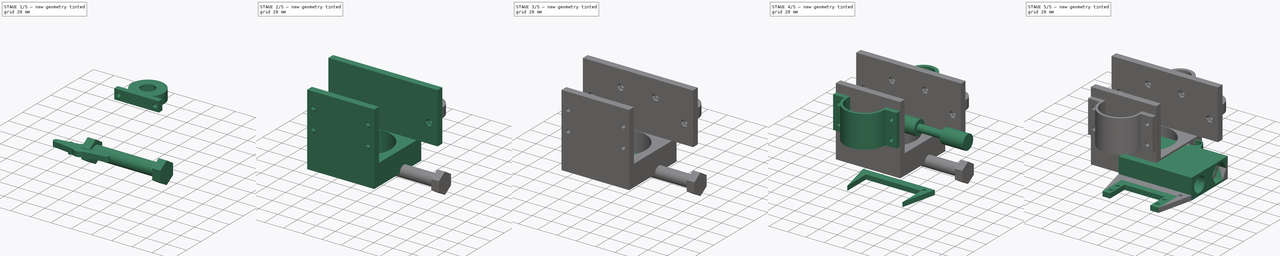
[diagram: build sequence overview — one tinted view per stage of 5, left to right]
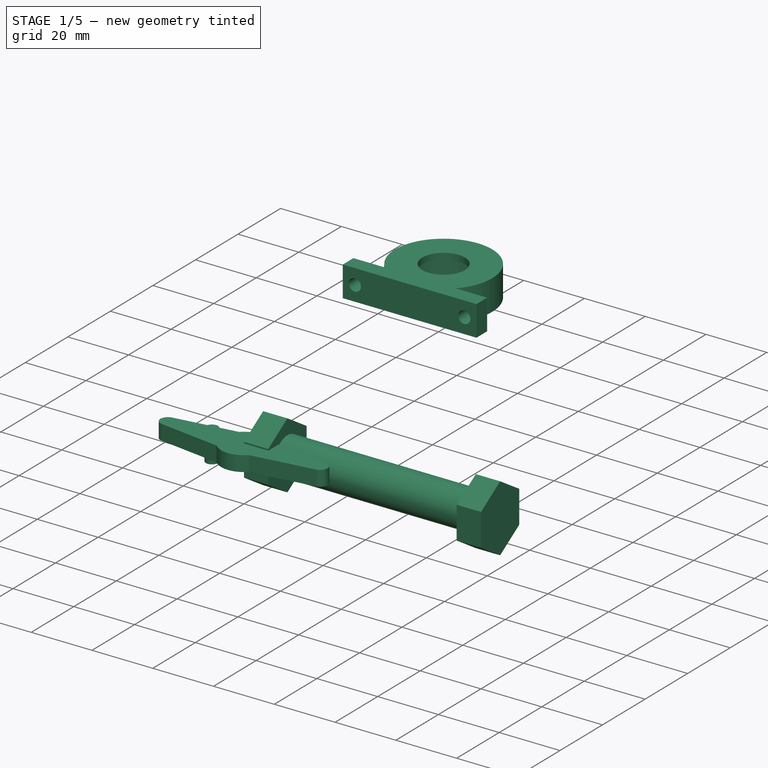
[diagram: stage 1 of 5 — iso view after this stage's code; geometry added in this stage tinted green]
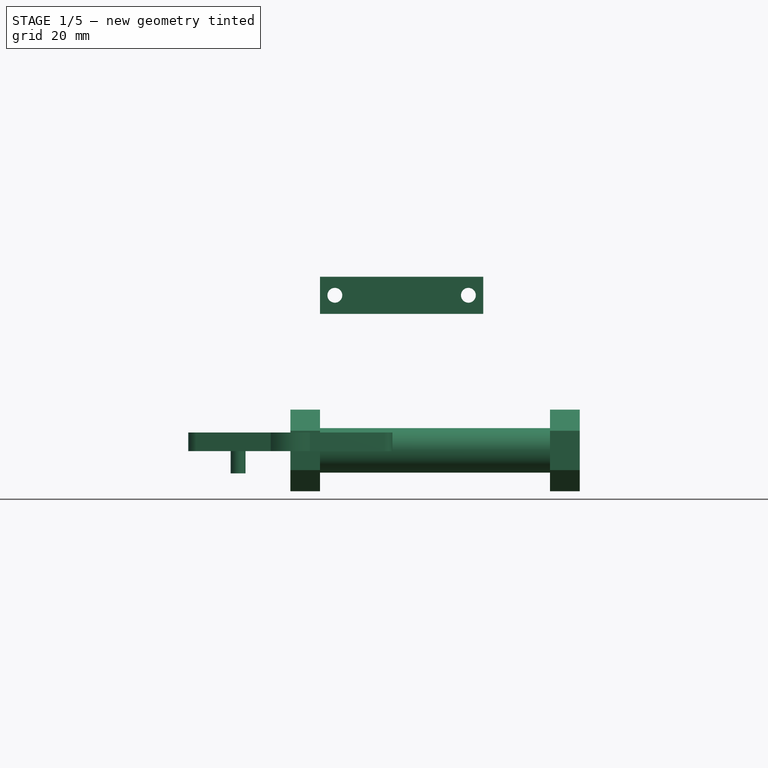
[diagram: stage 1 of 5 — front view after this stage's code; geometry added in this stage tinted green]
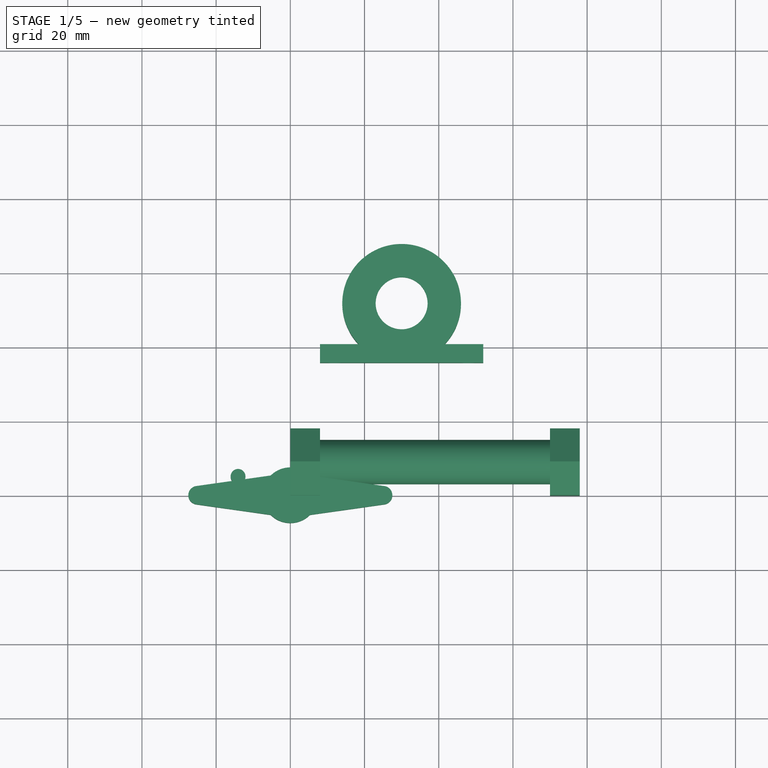
[diagram: stage 1 of 5 — top view after this stage's code; geometry added in this stage tinted green]
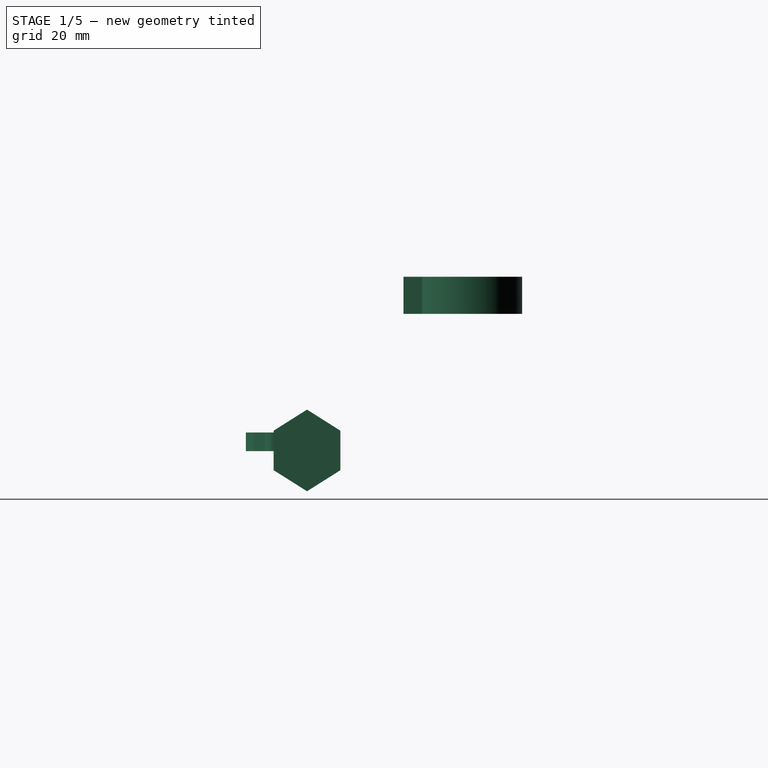
[diagram: stage 1 of 5 — right view after this stage's code; geometry added in this stage tinted green]
FCSTD DOCUMENT  (FreeCAD 0.14R3702 (Git))
Label: wok2
License: CC-BY 3.0
LicenseURL: http://creativecommons.org/licenses/by/3.0/
objects: Part::Cylinder×46, Part::Cut×29, Part::MultiFuse×25, Part::Box×16, Part::FeaturePython×11, Part::Extrusion×10, Part::Feature×6, Sketcher::SketchObject×5, Part::Part2DObjectPython×5, App::DocumentObjectGroup×3, PartDesign::Pocket×2
note: 157 computed .brp shape members not serialized (recipe doc carries the construction recipe); baked Part::Feature solids carry a one-line shape summary decoded from their .brp

FEATURE [Part::Cylinder] Cylinder041
  Angle = 360
  Height = 10
  Placement = pos=(-14.1,5.1,-6) rot=(0,0,1;0rad)
  Radius = 2
FEATURE [Part::Cylinder] Cylinder042
  Angle = 360
  Height = 2
  Radius = 7
FEATURE [Part::Cylinder] Cylinder043
  Angle = 360
  Height = 10
  Radius = 16
FEATURE [Part::Cylinder] Cylinder044
  Angle = 360
  Height = 10
  Placement = pos=(18,8,5) rot=(1,0,0;1.5708rad)
  Radius = 2
FEATURE [Part::Box] Box018  label="Cube017"
  Height = 10
  Length = 44
  Placement = pos=(-22,0,0) rot=(0,0,1;0rad)
  Width = 5
FEATURE [Part::Cylinder] Cylinder045
  Angle = 360
  Height = 2
  Radius = 14
FEATURE [Part::Cylinder] Cylinder046
  Angle = 360
  Height = 35
  Radius = 12.5
FEATURE [Part::Cut] Cut004035  label="cuerpo-arandela002"
  Base = -> Cylinder043
  Tool = -> Cylinder046
FEATURE [Part::FeaturePython] Array010  # Draft array (typed FeaturePython)
  Angle = 360
  ArrayType = 0
  Axis = (0,0,1)
  Base = -> Cylinder044
  Center = (0,0,0)
  IntervalX = (-36,0,0)
  IntervalY = (0,1,0)
  IntervalZ = (0,0,1)
  NumberPolar = 1
  NumberX = 2
  NumberY = 1
  NumberZ = 1
FEATURE [Part::Cut] Cut004034  label="base-arandela001 (se utiliza para el porta-rodamiento-grande001"
  Base = -> Box018
  Placement = pos=(0,11,0) rot=(0,0,1;0rad)
  Tool = -> Array010
FEATURE [Part::Cut] Cut004036  label="tapa-arandela002"
  Base = -> Cylinder045
  Tool = -> Cylinder042
FEATURE [Sketcher::SketchObject] Sketch002
  ExternalGeometry = -> [Cut004034]
  Placement = pos=(0,11,10) rot=(0,0,1;0rad)
  Support = -> Cut004034 [Face3]
  sketch-geometry (2):
    g0: ArcOfCircle CenterX=0 CenterY=-11 CenterZ=0 NormalX=0 NormalY=0 NormalZ=1 Radius=12.5 StartAngle=1.07586 EndAngle=2.06573
    g1: LineSegment StartX=-5.93717 StartY=0 StartZ=0 EndX=5.93717 EndY=0 EndZ=0
  constraints (7):
    c: PointOnObject(g0,g-2)
    c: PointOnObject(g0,g-3)
    c: PointOnObject(g0,g-3)
    c: Radius(g0) = 12.5
    c: DistanceY(g0,g-3) = 11
    c: Coincident(g1,g0)
    c: Coincident(g0,g1)
FEATURE [PartDesign::Pocket] Pocket001
  Length = 8
  Placement = pos=(0,11,0) rot=(0,0,1;0rad)
  Sketch = -> Sketch002
  Type = 0
FEATURE [Part::MultiFuse] Fusion035  label="porta-rodamiento-grande001"
  Placement = pos=(30,51,47) rot=(1,0,0;3.14159rad)
  Shapes = -> [Pocket001,Cut004035,Cut004036]
FEATURE [App::DocumentObjectGroup] Group001  label="Codos"
  Group = -> [Cut004020,Fusion025,Cut004026,Fusion026,Cut004029,Cut004033,Cut004034,Fusion035]
FEATURE [Sketcher::SketchObject] Sketch003
  sketch-geometry (6):
    g0: LineSegment StartX=0 StartY=0 StartZ=0 EndX=10.6444 EndY=0 EndZ=0
    g1: LineSegment StartX=10.6444 StartY=0 StartZ=0 EndX=16.328 EndY=9 EndZ=0
    g2: LineSegment StartX=0 StartY=0 StartZ=0 EndX=-5.68357 EndY=9 EndZ=0
    g3: LineSegment StartX=-5.68357 StartY=9 StartZ=0 EndX=0 EndY=18 EndZ=0
    g4: LineSegment StartX=16.328 StartY=9 StartZ=0 EndX=10.6444 EndY=18 EndZ=0
    g5: LineSegment StartX=0 StartY=18 StartZ=0 EndX=10.6444 EndY=18 EndZ=0
  constraints (18):
    c: Coincident(g0,g-1)
    c: PointOnObject(g0,g-1)
    c: Coincident(g2,g-1)
    c: Coincident(g3,g2)
    c: Horizontal(g5)
    c: Parallel(g3,g1)
    c: Parallel(g4,g2)
    c: Coincident(g3,g5)
    c: Coincident(g4,g5)
    c: Coincident(g1,g4)
    c: Equal(g0,g2)
    c: Equal(g2,g3)
    c: Equal(g3,g5)
    c: Equal(g5,g1)
    c: Equal(g1,g4)
    c: DistanceY(g-1,g3) = 18
    c: DistanceX(g-1,g3) = 0
    c: DistanceX(g2,g1) = 22.0115
FEATURE [Part::Part2DObjectPython] DWire002  # Draft 2D object (typed FeaturePython)
  Base = -> Sketch003
  ChamferSize = 0
  Closed = true
  End = (-5.68357,9,0)
  FilletRadius = 0
  MakeFace = true
  Points = (6) [(0,0,0),(10.6444,2.83233e-17,0),(16.328,9,0),(10.6444,18,0),(0,18,0),(-5.68357,9,0)]
  Start = (0,0,0)
FEATURE [Part::Extrusion] Extrude016  label="hueco-tuerca-M012"
  Base = -> DWire002
  Dir = (0,0,8)
  Placement = pos=(0,0,5.5) rot=(0,1,0;1.5708rad)
  Solid = false
FEATURE [Part::Part2DObjectPython] DWire003  # Draft 2D object (typed FeaturePython)
  Base = -> Sketch003
  ChamferSize = 0
  Closed = true
  End = (-5.68357,9,0)
  FilletRadius = 0
  MakeFace = true
  Points = (6) [(0,0,0),(10.6444,2.83233e-17,0),(16.328,9,0),(10.6444,18,0),(0,18,0),(-5.68357,9,0)]
  Start = (0,0,0)
FEATURE [Part::Extrusion] Extrude017  label="hueco-tuerca-M013"
  Base = -> DWire003
  Dir = (0,0,8)
  Placement = pos=(70,0,5.5) rot=(0,1,0;1.5708rad)
  Solid = false
FEATURE [Part::Cylinder] Cylinder047
  Angle = 360
  Height = 78
  Placement = pos=(0,9,0.2) rot=(0,1,0;1.5708rad)
  Radius = 6
FEATURE [Part::MultiFuse] Fusion036  label="hueco- tuercas001"
  Shapes = -> [Cylinder047,Extrude017,Extrude016]
FEATURE [App::DocumentObjectGroup] Group  label="Carro"
  Group = -> [Fusion014,Fusion010]
FEATURE [Part::Cylinder] Cylinder048
  Angle = 360
  Height = 10
  Radius = 5
FEATURE [Part::Cylinder] Cylinder049
  Angle = 360
  Height = 5
  Radius = 7.5
FEATURE [Part::Cut] Cut004037  label="autoblocanteM10"
  Base = -> Cylinder049
  Tool = -> Cylinder048
FEATURE [Sketcher::SketchObject] Sketch004
  sketch-geometry (6):
    g0: LineSegment StartX=-4.1 StartY=0 StartZ=0 EndX=-2.12025 EndY=3.75 EndZ=0
    g1: LineSegment StartX=-2.12025 StartY=3.75 StartZ=0 EndX=2.12025 EndY=3.75 EndZ=0
    g2: LineSegment StartX=2.12025 StartY=3.75 StartZ=0 EndX=4.1 EndY=0 EndZ=0
    g3: LineSegment StartX=4.1 StartY=0 StartZ=0 EndX=2.12025 EndY=-3.75 EndZ=0
    g4: LineSegment StartX=2.12025 StartY=-3.75 StartZ=0 EndX=-2.12025 EndY=-3.75 EndZ=0
    g5: LineSegment StartX=-2.12025 StartY=-3.75 StartZ=0 EndX=-4.1 EndY=0 EndZ=0
  constraints (20):
    c: Coincident(g0,g1)
    c: Horizontal(g1)
    c: Coincident(g1,g2)
    c: Coincident(g2,g3)
    c: Coincident(g3,g4)
    c: Horizontal(g4)
    c: Coincident(g4,g5)
    c: Coincident(g5,g0)
    c: Parallel(g0,g3)
    c: Parallel(g2,g5)
    c: Equal(g1,g2)
    c: Equal(g2,g3)
    c: Equal(g3,g4)
    c: Equal(g4,g5)
    c: Equal(g5,g0)
    c: DistanceY(g4,g0) = 7.5
    c: DistanceY(g2,g0) = 0
    c: DistanceX(g0,g2) = 8.2
    c: DistanceX(g-1,g0) = -4.1
    c: DistanceY(g-1,g0) = 0
FEATURE [Part::Cylinder] Cylinder050
  Angle = 360
  Height = 5
  Radius = 6
FEATURE [Part::Part2DObjectPython] DWire004  # Draft 2D object (typed FeaturePython)
  Base = -> Sketch004
  ChamferSize = 0
  Closed = true
  End = (-9.63908,-6.82524,0)
  FilletRadius = 0
  MakeFace = true
  Points = (6) [(-11.6188,-3.07524,0),(-9.63908,0.674764,0),(-5.39857,0.674764,0),(-3.41883,-3.07524,0),(-5.39857,-6.82524,0),(-9.63908,-6.82524,0)]
  Start = (-11.6188,-3.07524,0)
FEATURE [Part::Extrusion] Extrude018
  Base = -> DWire004
  Dir = (0,0,5)
  Solid = false
FEATURE [Part::Cylinder] Cylinder052
  Angle = 360
  Height = 5
  Placement = pos=(-25,0,0) rot=(0,0,1;0rad)
  Radius = 2.5
FEATURE [Part::Cylinder] Cylinder053
  Angle = 360
  Height = 5
  Placement = pos=(25,0,0) rot=(0,0,1;0rad)
  Radius = 2.5
FEATURE [Part::Cylinder] Cylinder054
  Angle = 360
  Height = 10
  Placement = pos=(24,0,0) rot=(0,0,1;0rad)
  Radius = 1.5
FEATURE [Part::Cylinder] Cylinder055
  Angle = 360
  Height = 10
  Placement = pos=(-24,0,0) rot=(0,0,1;0rad)
  Radius = 1.5
FEATURE [Part::MultiFuse] Fusion037
  Shapes = -> [Cylinder055,Cylinder054,Extrude018]
FEATURE [Part::Feature] hull
  shape: bbox 55 x 11.99 x 5 mm, 68 faces (baked)
FEATURE [Part::Cut] Cut004038  label="eje-wok"
  Base = -> hull
  Tool = -> Fusion037
FEATURE [App::DocumentObjectGroup] Group002  label="Eje-Wok"
  Group = -> [Cylinder050,Cylinder052,Cylinder053,Cut004038]
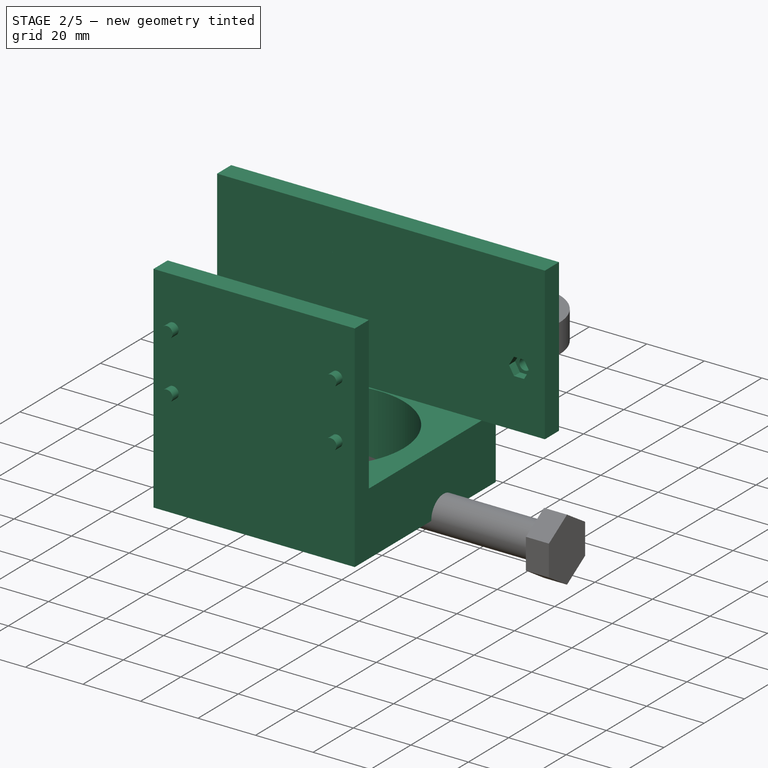
[diagram: stage 2 of 5 — iso view after this stage's code; geometry added in this stage tinted green]
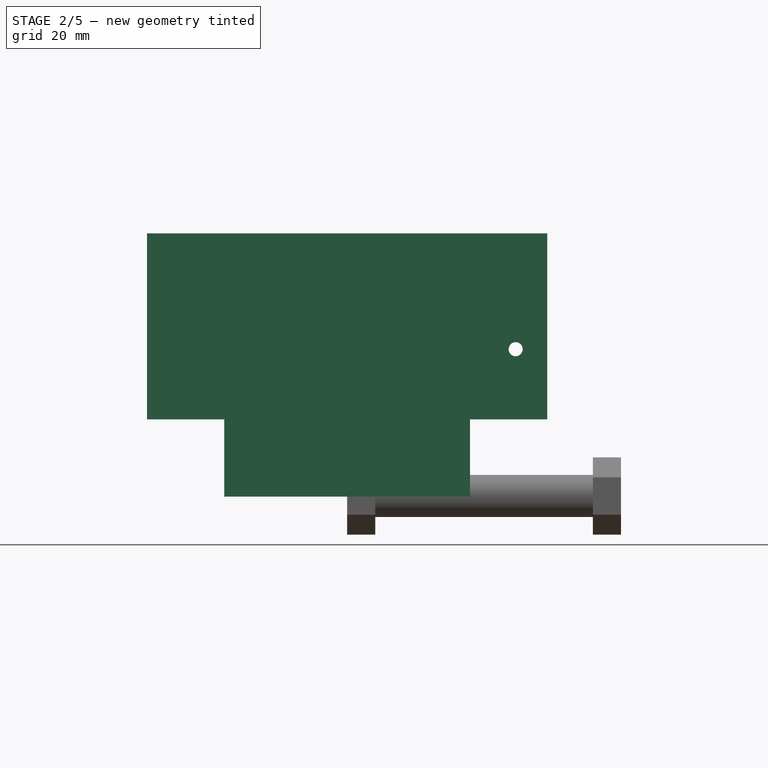
[diagram: stage 2 of 5 — front view after this stage's code; geometry added in this stage tinted green]
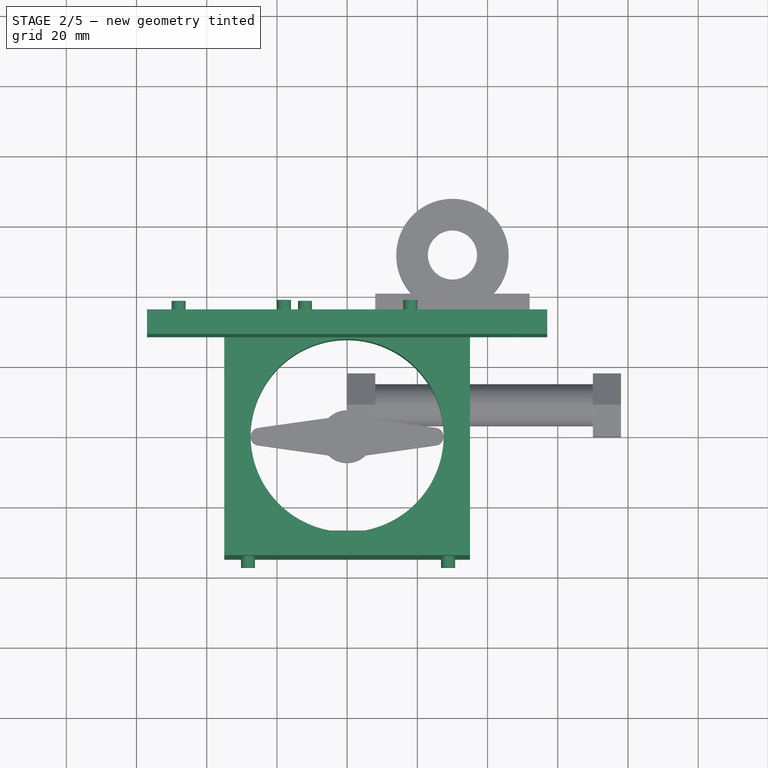
[diagram: stage 2 of 5 — top view after this stage's code; geometry added in this stage tinted green]
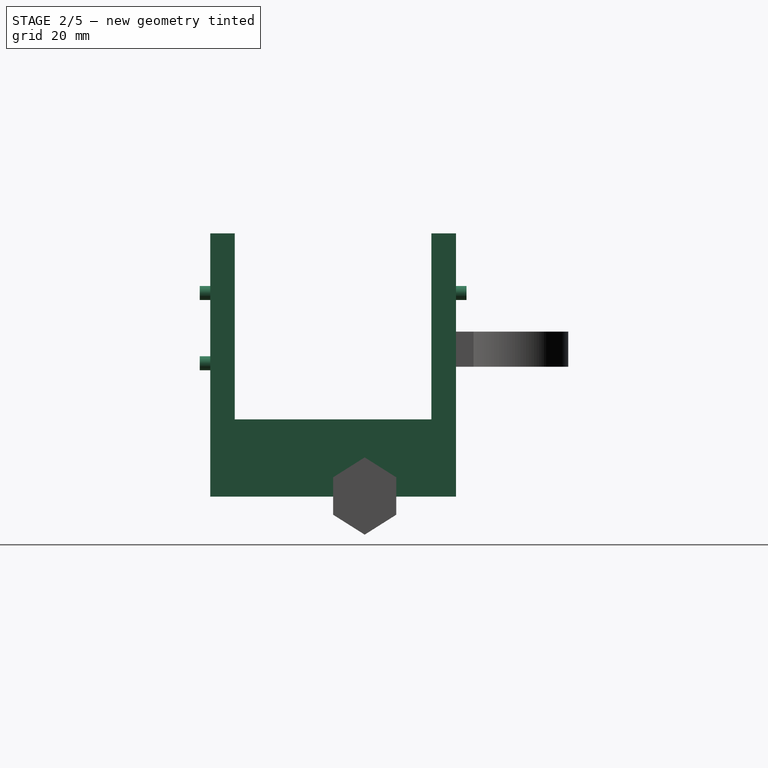
[diagram: stage 2 of 5 — right view after this stage's code; geometry added in this stage tinted green]
FEATURE [Part::Cylinder] Cylinder
  Angle = 360
  Height = 10
  Placement = pos=(-14.1,5.1,-6) rot=(0,0,1;0rad)
  Radius = 2
FEATURE [Part::Box] Box007  label="Cube006"
  Height = 53
  Length = 92
  Placement = pos=(-57,28,22) rot=(0,0,1;0rad)
  Width = 7
FEATURE [Part::Box] Box008  label="Cube007"
  Height = 53
  Length = 70
  Placement = pos=(-35,-35,22) rot=(0,0,1;0rad)
  Width = 7
FEATURE [Part::MultiFuse] Fusion021  label="agujero-tornillo"
  Placement = pos=(-30,-28,36) rot=(1,0,0;1.5708rad)
  Shapes = -> [Cylinder]
FEATURE [Part::FeaturePython] Array001  # Draft array (typed FeaturePython)
  Angle = 360
  ArrayType = 0
  Axis = (0,0,1)
  Base = -> Fusion021
  Center = (0,0,0)
  IntervalX = (57,0,0)
  IntervalY = (0,0,20)
  IntervalZ = (0,0,0)
  NumberPolar = 1
  NumberX = 2
  NumberY = 2
  NumberZ = 0
  Placement = pos=(0,0,-1) rot=(0,0,1;0rad)
FEATURE [Part::Cylinder] Cylinder036
  Angle = 360
  Height = 10
  Placement = pos=(-14.1,5.1,-6) rot=(0,0,1;0rad)
  Radius = 2
FEATURE [Part::MultiFuse] Fusion029  label="agujero-tornillo002"
  Placement = pos=(-30,-28,36) rot=(1,0,0;1.5708rad)
  Shapes = -> [Cylinder036]
FEATURE [Part::FeaturePython] Array005  # Draft array (typed FeaturePython)
  Angle = 360
  ArrayType = 0
  Axis = (0,0,1)
  Base = -> Fusion029
  Center = (0,0,0)
  IntervalX = (36,0,0)
  IntervalY = (0,0,20)
  IntervalZ = (0,0,0)
  NumberPolar = 1
  NumberX = 2
  NumberY = 1
  NumberZ = 0
  Placement = pos=(-10.25,0,19) rot=(0,0,1;3.14159rad)
FEATURE [Part::Cylinder] Cylinder037
  Angle = 360
  Height = 10
  Placement = pos=(-14.1,5.1,-6) rot=(0,0,1;0rad)
  Radius = 2
FEATURE [Part::MultiFuse] Fusion030  label="agujero-tornillo003"
  Placement = pos=(-30,-28,36) rot=(1,0,0;1.5708rad)
  Shapes = -> [Cylinder037]
FEATURE [Part::FeaturePython] Array006  # Draft array (typed FeaturePython)
  Angle = 360
  ArrayType = 0
  Axis = (0,0,1)
  Base = -> Fusion030
  Center = (0,0,0)
  IntervalX = (36,0,0)
  IntervalY = (0,0,20)
  IntervalZ = (0,0,0)
  NumberPolar = 1
  NumberX = 2
  NumberY = 1
  NumberZ = 0
  Placement = pos=(-40.25,0,3) rot=(0,0,1;3.14159rad)
FEATURE [Part::Cylinder] Cylinder038
  Angle = 360
  Height = 10
  Placement = pos=(-14.1,5.1,-6) rot=(0,0,1;0rad)
  Radius = 2
FEATURE [Part::Cylinder] Cylinder039
  Angle = 360
  Height = 10
  Placement = pos=(-14.1,5.1,-6) rot=(0,0,1;0rad)
  Radius = 2
FEATURE [Part::MultiFuse] Fusion031  label="agujero-tornillo004"
  Placement = pos=(-30,-28,36) rot=(1,0,0;1.5708rad)
  Shapes = -> [Cylinder039]
FEATURE [Part::Cylinder] Cylinder040
  Angle = 360
  Height = 22
  Radius = 27.5
FEATURE [Part::Box] Box015  label="Cube014"
  Height = 22
  Length = 70
  Placement = pos=(-35,-35,0) rot=(0,0,1;0rad)
  Width = 70
FEATURE [Part::Box] Box016  label="Cube015"
  Height = 53
  Length = 92
  Placement = pos=(-35,28,22) rot=(0,0,1;0rad)
  Width = 7
FEATURE [Part::Box] Box017  label="Cube016"
  Height = 53
  Length = 70
  Placement = pos=(-35,-35,22) rot=(0,0,1;0rad)
  Width = 7
FEATURE [Part::MultiFuse] Fusion032
  Shapes = -> [Box015,Box016,Box017]
FEATURE [Part::Cut] Cut004030
  Base = -> Fusion032
  Tool = -> Cylinder040
FEATURE [Part::FeaturePython] Array007  # Draft array (typed FeaturePython)
  Angle = 360
  ArrayType = 0
  Axis = (0,0,1)
  Base = -> Fusion031
  Center = (0,0,0)
  IntervalX = (57,0,0)
  IntervalY = (0,0,20)
  IntervalZ = (0,0,0)
  NumberPolar = 1
  NumberX = 2
  NumberY = 2
  NumberZ = 0
  Placement = pos=(0,0,-1) rot=(0,0,1;0rad)
FEATURE [Part::Cut] Cut004031  label="Cut004039"
  Base = -> Cut004030
  Tool = -> Array007
FEATURE [Part::MultiFuse] Fusion033  label="agujero-tornillo005"
  Placement = pos=(-30,-28,36) rot=(1,0,0;1.5708rad)
  Shapes = -> [Cylinder038]
FEATURE [Part::FeaturePython] Array008  # Draft array (typed FeaturePython)
  Angle = 360
  ArrayType = 0
  Axis = (0,0,1)
  Base = -> Fusion033
  Center = (0,0,0)
  IntervalX = (36,0,0)
  IntervalY = (0,0,20)
  IntervalZ = (0,0,0)
  NumberPolar = 1
  NumberX = 2
  NumberY = 1
  NumberZ = 0
  Placement = pos=(19.75,0,3) rot=(0,0,1;3.14159rad)
FEATURE [Part::MultiFuse] Fusion034  label="agujero-tornillo006"
  Placement = pos=(-30,-28,36) rot=(1,0,0;1.5708rad)
  Shapes = -> [Cylinder041]
FEATURE [Part::FeaturePython] Array009  # Draft array (typed FeaturePython)
  Angle = 360
  ArrayType = 0
  Axis = (0,0,1)
  Base = -> Fusion034
  Center = (0,0,0)
  IntervalX = (36,0,0)
  IntervalY = (0,0,20)
  IntervalZ = (0,0,0)
  NumberPolar = 1
  NumberX = 2
  NumberY = 1
  NumberZ = 0
  Placement = pos=(-10.25,0,19) rot=(0,0,1;3.14159rad)
FEATURE [Part::Cut] Cut004032  label="Cut004040"
  Base = -> Cut004031
  Tool = -> Array009
FEATURE [Part::Cut] Cut004033  label="cuerpo codo IZQ"
  Base = -> Cut004032
  Tool = -> Array008
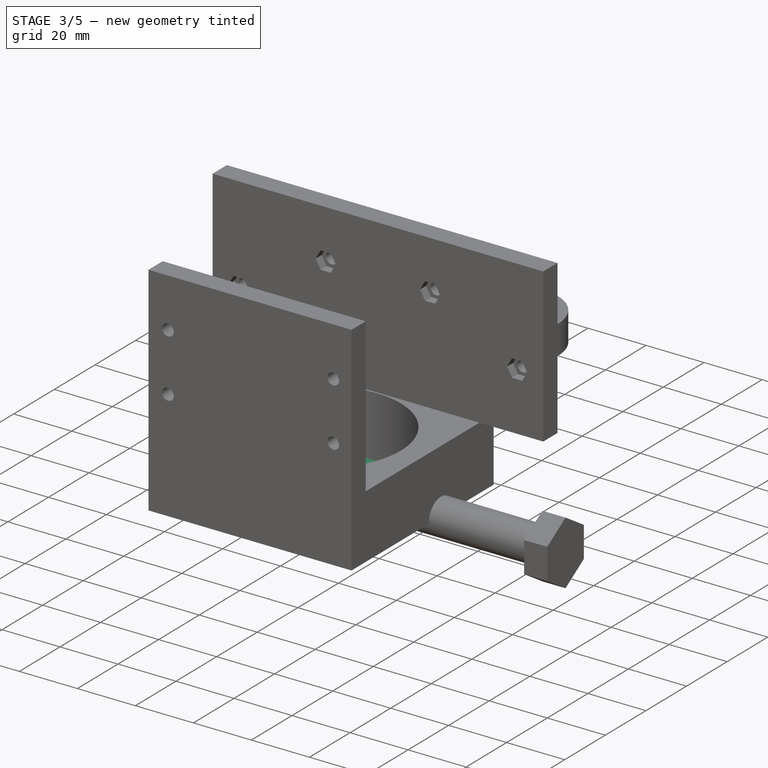
[diagram: stage 3 of 5 — iso view after this stage's code; geometry added in this stage tinted green]
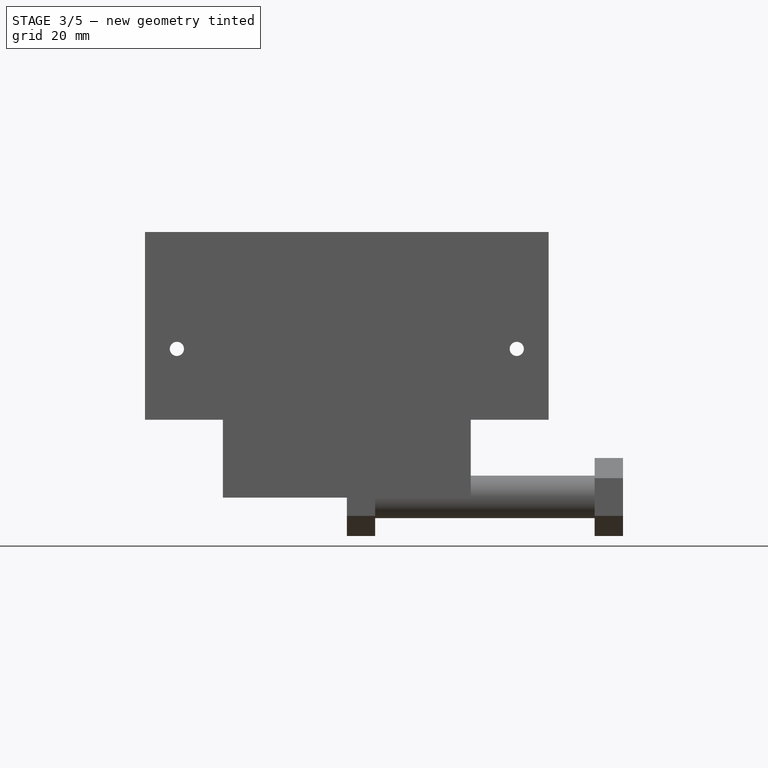
[diagram: stage 3 of 5 — front view after this stage's code; geometry added in this stage tinted green]
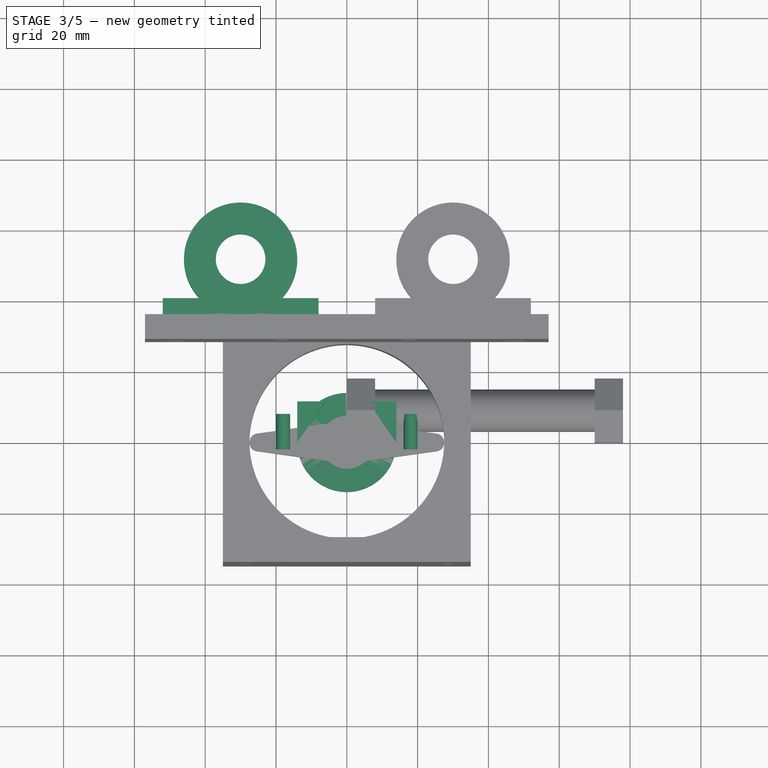
[diagram: stage 3 of 5 — top view after this stage's code; geometry added in this stage tinted green]
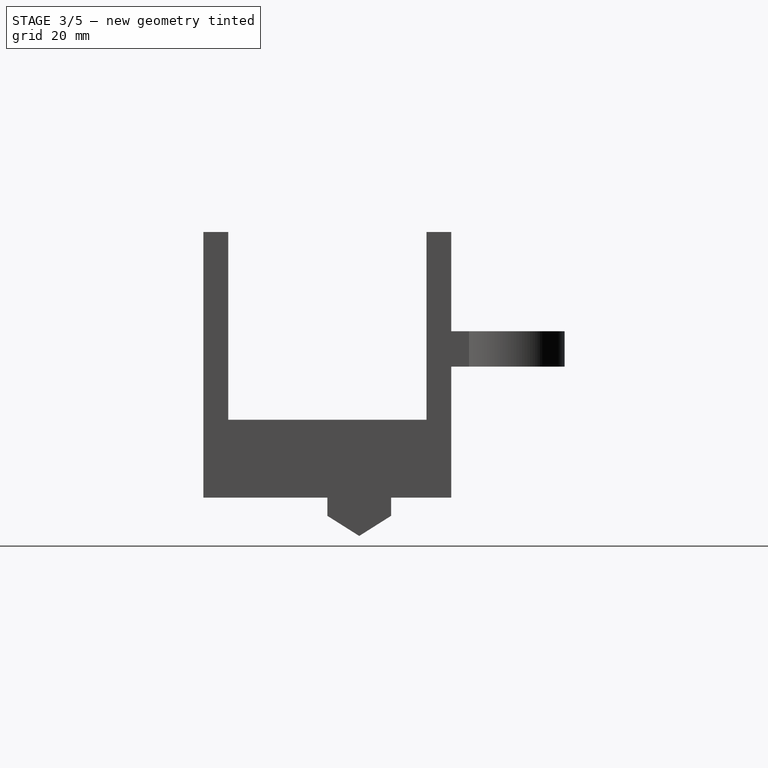
[diagram: stage 3 of 5 — right view after this stage's code; geometry added in this stage tinted green]
FEATURE [Part::Cylinder] Cylinder018
  Angle = 360
  Height = 22
  Radius = 27.5
FEATURE [Part::Box] Box006  label="Cube"
  Height = 22
  Length = 70
  Placement = pos=(-35,-35,0) rot=(0,0,1;0rad)
  Width = 70
FEATURE [Part::MultiFuse] Fusion016
  Shapes = -> [Box006,Box007,Box008]
FEATURE [Part::Cut] Cut004009
  Base = -> Fusion016
  Tool = -> Cylinder018
FEATURE [Part::Cylinder] Cylinder024
  Angle = 360
  Height = 10
  Placement = pos=(18,8,5) rot=(1,0,0;1.5708rad)
  Radius = 2
FEATURE [Part::Cut] Cut004021  label="Cut004037"
  Base = -> Cut004009
  Tool = -> Array001
FEATURE [Part::FeaturePython] Array003  # Draft array (typed FeaturePython)
  Angle = 360
  ArrayType = 0
  Axis = (0,0,1)
  Base = -> Cylinder024
  Center = (0,0,0)
  IntervalX = (-36,0,0)
  IntervalY = (0,1,0)
  IntervalZ = (0,0,1)
  NumberPolar = 1
  NumberX = 2
  NumberY = 1
  NumberZ = 1
FEATURE [Part::Feature] Face006
  shape: bbox 8.007 x 11.41 x 2e-07 mm, 1 faces, 0 solids (baked)
FEATURE [Part::Feature] Face007
  shape: bbox 7.943 x 11.38 x 2e-07 mm, 1 faces, 0 solids (baked)
FEATURE [Part::Extrusion] Extrude012
  Base = -> Face006
  Dir = (0,0,-10)
  Solid = false
FEATURE [Part::Extrusion] Extrude013
  Base = -> Face007
  Dir = (0,0,-10)
  Solid = false
FEATURE [Part::MultiFuse] Fusion024
  Shapes = -> [Extrude013,Extrude012]
FEATURE [Part::Cylinder] Cylinder028
  Angle = 360
  Height = 2
  Radius = 7
FEATURE [Part::Cylinder] Cylinder029
  Angle = 360
  Height = 2
  Radius = 14
FEATURE [Part::Cut] Cut004023  label="tapa-arandela"
  Base = -> Cylinder029
  Tool = -> Cylinder028
FEATURE [Part::Box] Box014  label="Cube013"
  Height = 10
  Length = 44
  Placement = pos=(-22,0,0) rot=(0,0,1;0rad)
  Width = 5
FEATURE [Part::Cylinder] Cylinder030
  Angle = 360
  Height = 10
  Radius = 16
FEATURE [Part::Cylinder] Cylinder031
  Angle = 360
  Height = 10
  Placement = pos=(18,8,5) rot=(1,0,0;1.5708rad)
  Radius = 2
FEATURE [Part::Cylinder] Cylinder032
  Angle = 360
  Height = 35
  Radius = 12.5
FEATURE [Part::Cut] Cut004024  label="cuerpo-arandela001"
  Base = -> Cylinder030
  Tool = -> Cylinder032
FEATURE [Part::FeaturePython] Array004  # Draft array (typed FeaturePython)
  Angle = 360
  ArrayType = 0
  Axis = (0,0,1)
  Base = -> Cylinder031
  Center = (0,0,0)
  IntervalX = (-36,0,0)
  IntervalY = (0,1,0)
  IntervalZ = (0,0,1)
  NumberPolar = 1
  NumberX = 2
  NumberY = 1
  NumberZ = 1
FEATURE [Part::Cut] Cut004026  label="base-arandela001 (se utiliza para el porta-rodamiento-grande"
  Base = -> Box014
  Placement = pos=(0,11,0) rot=(0,0,1;0rad)
  Tool = -> Array004
FEATURE [Part::Cylinder] Cylinder033
  Angle = 360
  Height = 2
  Radius = 7
FEATURE [Part::Cylinder] Cylinder034
  Angle = 360
  Height = 2
  Radius = 14
FEATURE [Part::Cut] Cut004025  label="tapa-arandela001"
  Base = -> Cylinder034
  Tool = -> Cylinder033
FEATURE [Sketcher::SketchObject] Sketch001
  ExternalGeometry = -> [Cut004026]
  Placement = pos=(0,11,10) rot=(0,0,1;0rad)
  Support = -> Cut004026 [Face3]
  sketch-geometry (2):
    g0: ArcOfCircle CenterX=0 CenterY=-11 CenterZ=0 NormalX=0 NormalY=0 NormalZ=1 Radius=12.5 StartAngle=1.07586 EndAngle=2.06573
    g1: LineSegment StartX=-5.93717 StartY=0 StartZ=0 EndX=5.93717 EndY=0 EndZ=0
  constraints (7):
    c: PointOnObject(g0,g-2)
    c: PointOnObject(g0,g-3)
    c: PointOnObject(g0,g-3)
    c: Radius(g0) = 12.5
    c: DistanceY(g0,g-3) = 11
    c: Coincident(g1,g0)
    c: Coincident(g0,g1)
FEATURE [PartDesign::Pocket] Pocket
  Length = 8
  Placement = pos=(0,11,0) rot=(0,0,1;0rad)
  Sketch = -> Sketch001
  Type = 0
FEATURE [Part::MultiFuse] Fusion026  label="porta-rodamiento-grande"
  Placement = pos=(-30,51,47) rot=(1,0,0;3.14159rad)
  Shapes = -> [Pocket,Cut004024,Cut004025]
FEATURE [Part::Cut] Cut004028  label="Cut004038"
  Base = -> Cut004021
  Tool = -> Array005
FEATURE [Part::Cut] Cut004029  label="cuerpo codo DER"
  Base = -> Cut004028
  Tool = -> Array006
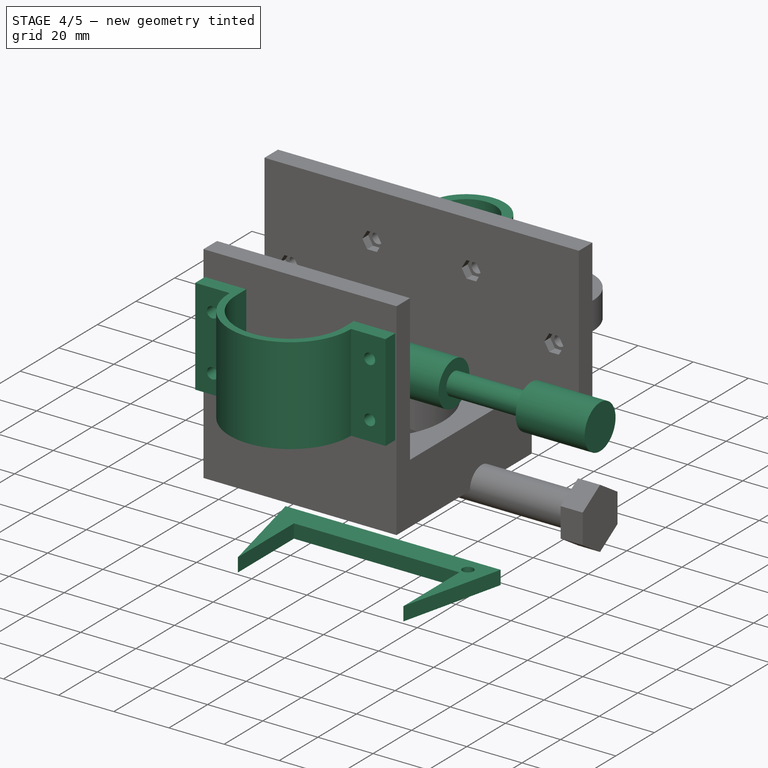
[diagram: stage 4 of 5 — iso view after this stage's code; geometry added in this stage tinted green]
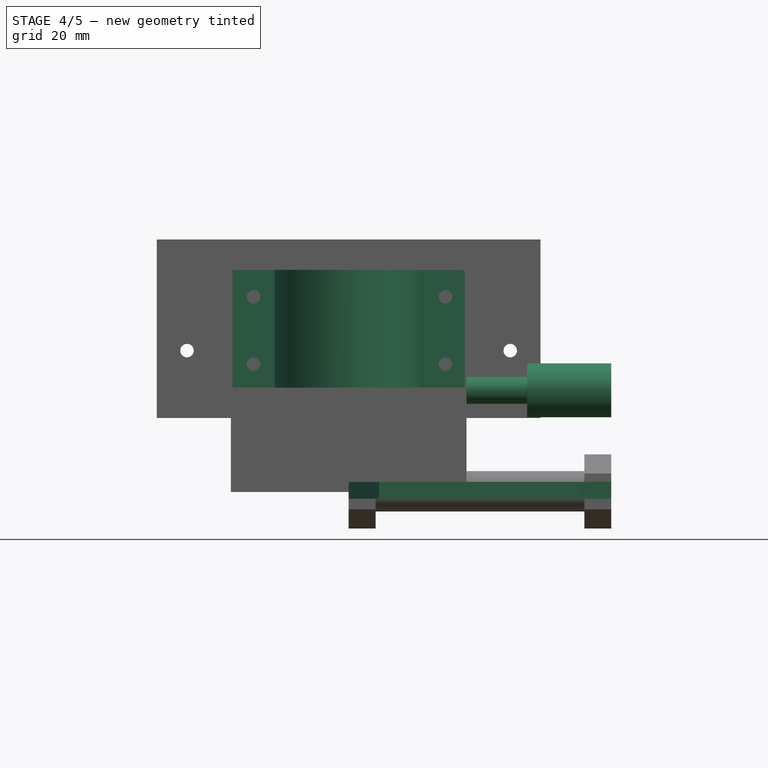
[diagram: stage 4 of 5 — front view after this stage's code; geometry added in this stage tinted green]
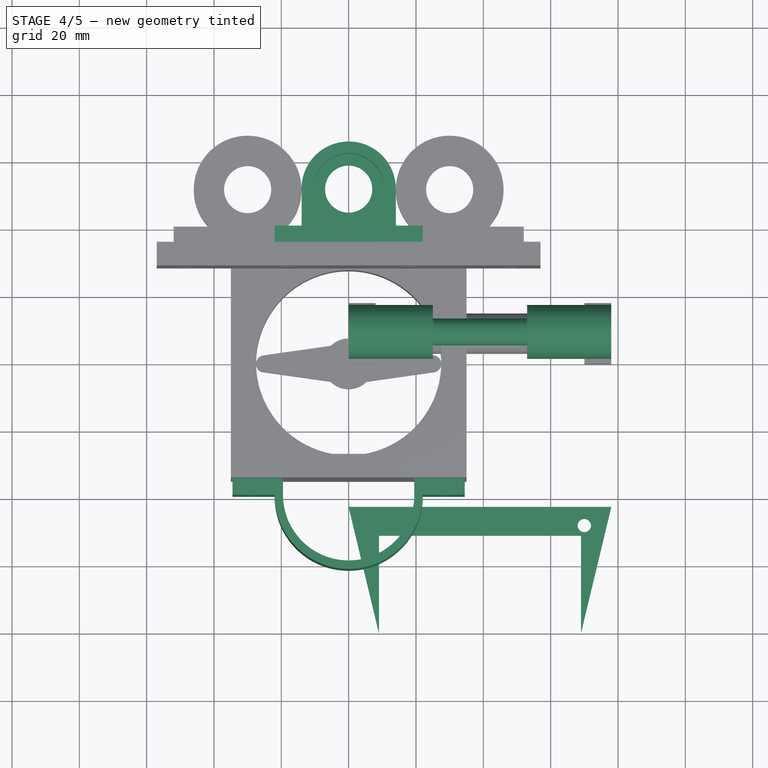
[diagram: stage 4 of 5 — top view after this stage's code; geometry added in this stage tinted green]
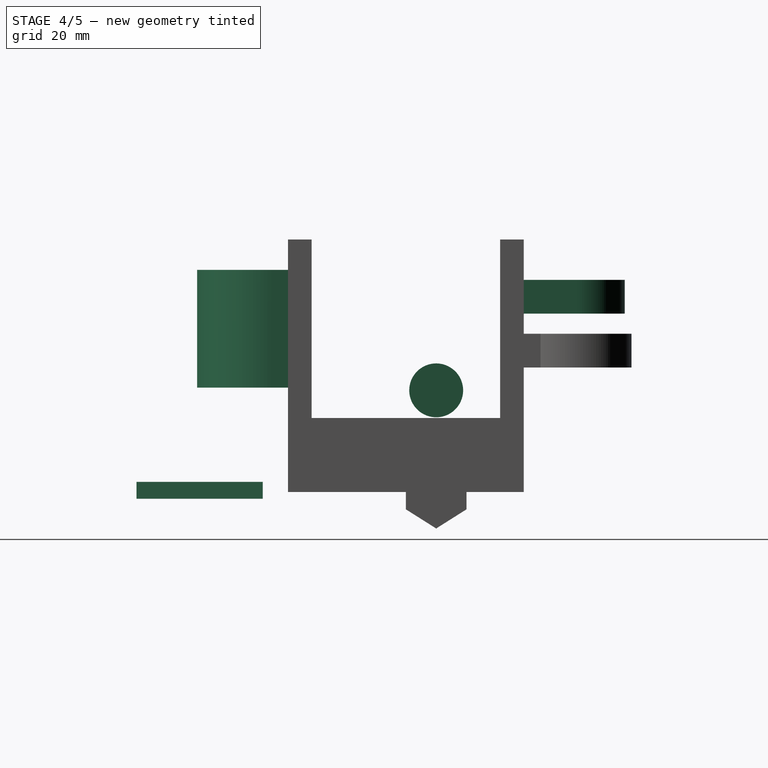
[diagram: stage 4 of 5 — right view after this stage's code; geometry added in this stage tinted green]
FEATURE [Sketcher::SketchObject] Sketch
  sketch-geometry (6):
    g0: LineSegment StartX=0 StartY=0 StartZ=0 EndX=10.6444 EndY=0 EndZ=0
    g1: LineSegment StartX=10.6444 StartY=0 StartZ=0 EndX=16.328 EndY=9 EndZ=0
    g2: LineSegment StartX=0 StartY=0 StartZ=0 EndX=-5.68357 EndY=9 EndZ=0
    g3: LineSegment StartX=-5.68357 StartY=9 StartZ=0 EndX=0 EndY=18 EndZ=0
    g4: LineSegment StartX=16.328 StartY=9 StartZ=0 EndX=10.6444 EndY=18 EndZ=0
    g5: LineSegment StartX=0 StartY=18 StartZ=0 EndX=10.6444 EndY=18 EndZ=0
  constraints (18):
    c: Coincident(g0,g-1)
    c: PointOnObject(g0,g-1)
    c: Coincident(g2,g-1)
    c: Coincident(g3,g2)
    c: Horizontal(g5)
    c: Parallel(g3,g1)
    c: Parallel(g4,g2)
    c: Coincident(g3,g5)
    c: Coincident(g4,g5)
    c: Coincident(g1,g4)
    c: Equal(g0,g2)
    c: Equal(g2,g3)
    c: Equal(g3,g5)
    c: Equal(g5,g1)
    c: Equal(g1,g4)
    c: DistanceY(g-1,g3) = 18
    c: DistanceX(g-1,g3) = 0
    c: DistanceX(g2,g1) = 22.0115
FEATURE [Part::Part2DObjectPython] DWire  # Draft 2D object (typed FeaturePython)
  Base = -> Sketch
  ChamferSize = 0
  Closed = true
  End = (-5.68357,9,0)
  FilletRadius = 0
  MakeFace = true
  Points = (6) [(0,0,0),(10.6444,2.83233e-17,0),(16.328,9,0),(10.6444,18,0),(0,18,0),(-5.68357,9,0)]
  Start = (0,0,0)
FEATURE [Part::Extrusion] Extrude  label="hueco-tuerca-M10"
  Base = -> DWire
  Dir = (0,0,8)
  Placement = pos=(0,0,5.5) rot=(0,1,0;1.5708rad)
  Solid = false
FEATURE [Part::Part2DObjectPython] DWire001  # Draft 2D object (typed FeaturePython)
  Base = -> Sketch
  ChamferSize = 0
  Closed = true
  End = (-5.68357,9,0)
  FilletRadius = 0
  MakeFace = true
  Points = (6) [(0,0,0),(10.6444,2.83233e-17,0),(16.328,9,0),(10.6444,18,0),(0,18,0),(-5.68357,9,0)]
  Start = (0,0,0)
FEATURE [Part::Extrusion] Extrude001  label="hueco-tuerca-M011"
  Base = -> DWire001
  Dir = (0,0,8)
  Placement = pos=(70,0,5.5) rot=(0,1,0;1.5708rad)
  Solid = false
FEATURE [Part::Cylinder] Cylinder001
  Angle = 360
  Height = 78
  Placement = pos=(0,9,0.2) rot=(0,1,0;1.5708rad)
  Radius = 6
FEATURE [Part::Cylinder] Cylinder014
  Angle = 360
  Height = 25
  Placement = pos=(0,9,0.2) rot=(0,1,0;1.5708rad)
  Radius = 8
FEATURE [Part::Cylinder] Cylinder015
  Angle = 360
  Height = 78
  Placement = pos=(0,9,0.2) rot=(0,1,0;1.5708rad)
  Radius = 4
FEATURE [Part::Cylinder] Cylinder016
  Angle = 360
  Height = 25
  Placement = pos=(53,9,0.2) rot=(0,1,0;1.5708rad)
  Radius = 8
FEATURE [Part::MultiFuse] Fusion012  label="agujeros-lineales002"
  Placement = pos=(0,0,30) rot=(0,0,1;0rad)
  Shapes = -> [Cylinder016,Cylinder015,Cylinder014]
FEATURE [Part::Cylinder] Cylinder019
  Angle = 360
  Height = 35
  Radius = 19.5
FEATURE [Part::Cylinder] Cylinder020
  Angle = 360
  Height = 35
  Radius = 22
FEATURE [Part::Cut] Cut004010
  Base = -> Cylinder020
  Tool = -> Cylinder019
FEATURE [Part::Box] Box009  label="Cube008"
  Height = 35
  Length = 59
  Placement = pos=(-29,0,0) rot=(0,0,1;0rad)
  Width = 26
FEATURE [Part::Cut] Cut004011  label="arco-motor"
  Base = -> Cut004010
  Tool = -> Box009
FEATURE [Part::Box] Box010  label="Cube009"
  Height = 35
  Length = 15
  Placement = pos=(19.5,0,0) rot=(0,0,1;0rad)
  Width = 5
FEATURE [Part::Cylinder] Cylinder023
  Angle = 360
  Height = 10
  Radius = 14
FEATURE [Part::Cylinder] Cylinder026
  Angle = 360
  Height = 35
  Radius = 10.5
FEATURE [Part::Cut] Cut004017  label="cuerpo-arandela"
  Base = -> Cylinder023
  Tool = -> Cylinder026
FEATURE [Part::Box] Box012  label="Cube011"
  Height = 10
  Length = 44
  Placement = pos=(-22,0,0) rot=(0,0,1;0rad)
  Width = 5
FEATURE [Part::Box] Box013  label="Cube012"
  Height = 35
  Length = 15
  Placement = pos=(-34.5,0,0) rot=(0,0,1;0rad)
  Width = 5
FEATURE [Part::Cylinder] Cylinder027
  Angle = 360
  Height = 10
  Placement = pos=(-14.1,5.1,-6) rot=(0,0,1;0rad)
  Radius = 2
FEATURE [Part::MultiFuse] Fusion022  label="agujero-tornillo001"
  Placement = pos=(-30,-28,36) rot=(1,0,0;1.5708rad)
  Shapes = -> [Cylinder027]
FEATURE [Part::FeaturePython] Array002  # Draft array (typed FeaturePython)
  Angle = 360
  ArrayType = 0
  Axis = (0,0,1)
  Base = -> Fusion022
  Center = (0,0,0)
  IntervalX = (57,0,0)
  IntervalY = (0,0,20)
  IntervalZ = (0,0,0)
  NumberPolar = 1
  NumberX = 2
  NumberY = 2
  NumberZ = 0
  Placement = pos=(0,37,-32) rot=(0,0,1;0rad)
FEATURE [Part::MultiFuse] Fusion023
  Shapes = -> [Box013,Box010,Cut004011]
FEATURE [Part::Cut] Cut004020  label="porta-motor"
  Base = -> Fusion023
  Placement = pos=(0,-40,31) rot=(0,0,1;0rad)
  Tool = -> Array002
FEATURE [Part::Cut] Cut004022  label="base-arandela"
  Base = -> Box012
  Placement = pos=(0,11,0) rot=(0,0,1;0rad)
  Tool = -> Array003
FEATURE [Part::MultiFuse] Fusion025  label="porta-arandela"
  Placement = pos=(0,51,53) rot=(0,0,1;3.14159rad)
  Shapes = -> [Cut004017,Cut004023,Cut004022,Fusion024]
FEATURE [Part::Cylinder] Cylinder035
  Angle = 360
  Height = 10
  Placement = pos=(70,-48,-4) rot=(0,0,1;0rad)
  Radius = 2
FEATURE [Part::Feature] Face009
  shape: bbox 78 x 37.5 x 2e-07 mm, 1 faces, 0 solids (baked)
FEATURE [Part::Extrusion] Extrude015
  Base = -> Face009
  Dir = (0,0,5)
  Solid = false
FEATURE [Part::Cut] Cut004027
  Base = -> Extrude015
  Tool = -> Cylinder035
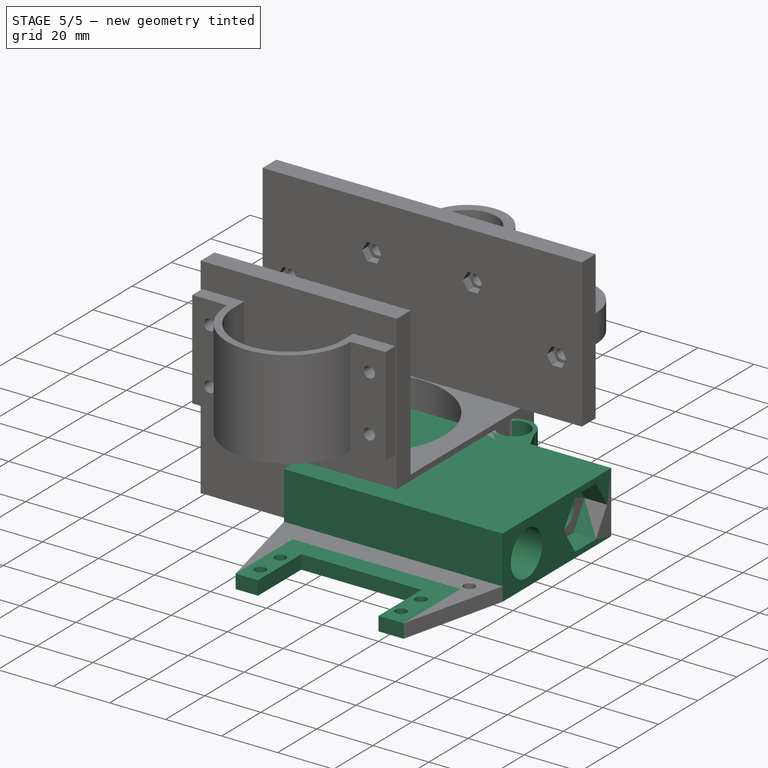
[diagram: stage 5 of 5 — iso view after this stage's code; geometry added in this stage tinted green]
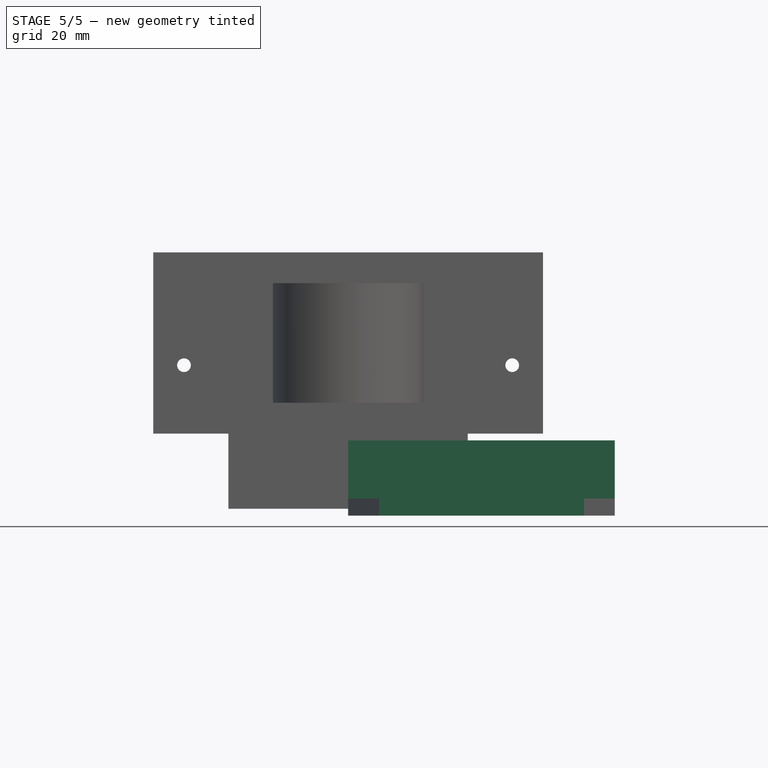
[diagram: stage 5 of 5 — front view after this stage's code; geometry added in this stage tinted green]
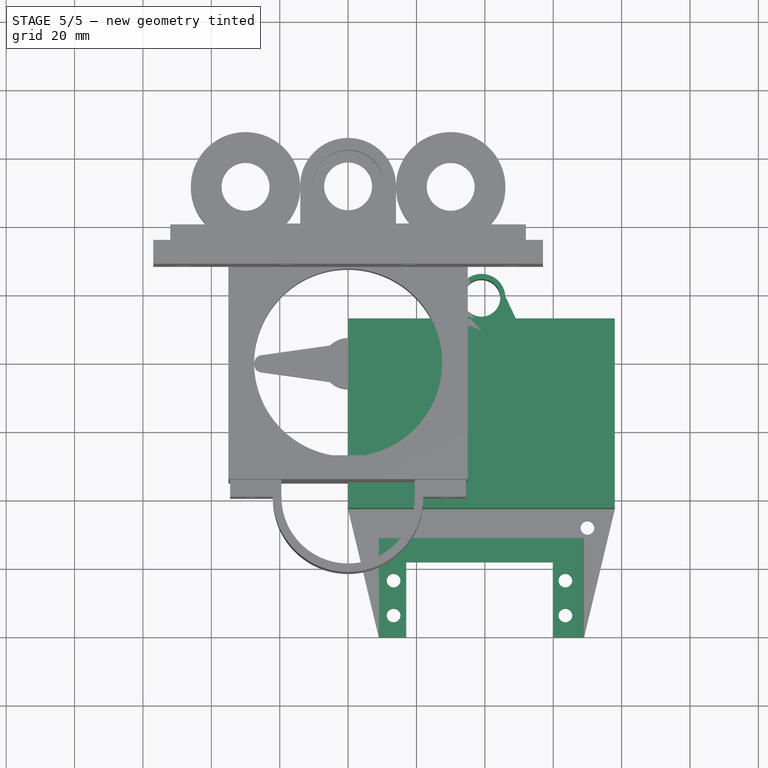
[diagram: stage 5 of 5 — top view after this stage's code; geometry added in this stage tinted green]
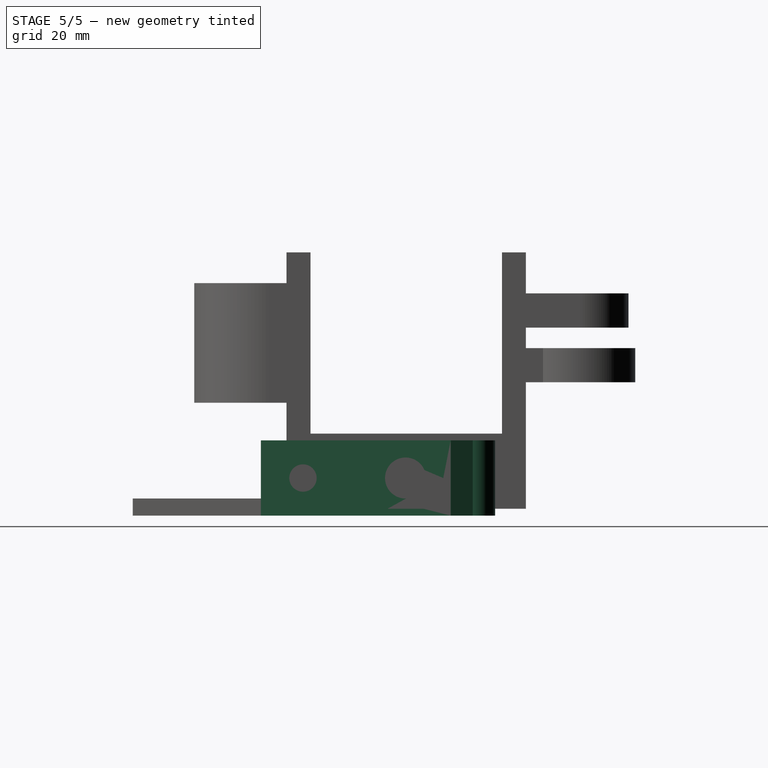
[diagram: stage 5 of 5 — right view after this stage's code; geometry added in this stage tinted green]
FEATURE [Part::Box] Box  label="Cube003"
  Height = 5
  Length = 60
  Placement = pos=(-69,-12,-8) rot=(0,0,1;0rad)
  Width = 29
FEATURE [Part::Box] Box002  label="Cube002"
  Height = 10
  Length = 43
  Placement = pos=(-61,-12,-13) rot=(0,0,1;0rad)
  Width = 22
FEATURE [Part::Cut] Cut  label="bracket-servo"
  Base = -> Box
  Placement = pos=(-6,81.5,30) rot=(-0.57735,-0.57735,0.57735;2.0944rad)
  Tool = -> Box002
FEATURE [Part::FeaturePython] Array  label="agujeros-servo"  # Draft array (typed FeaturePython)
  Angle = 360
  ArrayType = 0
  Axis = (0,0,1)
  Base = -> Cylinder
  Center = (0,0,0)
  IntervalX = (-50.25,0,0)
  IntervalY = (0,-10.2,0)
  IntervalZ = (0,0,1)
  NumberPolar = 1
  NumberX = 2
  NumberY = 2
  NumberZ = 1
  Placement = pos=(-3,2.7,30.5) rot=(0.57735,-0.57735,-0.57735;2.0944rad)
FEATURE [Part::Cut] Cut001  label="bracket-servo001"
  Base = -> Cut
  Placement = pos=(-3.5,-38,0) rot=(0.57735,0.57735,-0.57735;2.0944rad)
  Tool = -> Array
FEATURE [Part::MultiFuse] Fusion  label="hueco- tuercas"
  Shapes = -> [Cylinder001,Extrude001,Extrude]
FEATURE [Part::Box] Box004  label="Cube004"
  Height = 55.5
  Length = 78
  Placement = pos=(0,-2,-13) rot=(0,0,1;0rad)
  Width = 22
FEATURE [Part::Cylinder] Cylinder003
  Angle = 360
  Height = 22
  Placement = pos=(39,19,-2) rot=(0,0,1;0rad)
  Radius = 5.5
FEATURE [Part::Cylinder] Cylinder004
  Angle = 360
  Height = 22
  Placement = pos=(39,19,-2) rot=(0,0,1;0rad)
  Radius = 7
FEATURE [Part::Cut] Cut003  label="cilindro"
  Base = -> Cylinder004
  Tool = -> Cylinder003
FEATURE [Part::Feature] Face
  shape: bbox 19.99 x 12.63 x 2e-07 mm, 1 faces, 0 solids (baked)
FEATURE [Part::Extrusion] Extrude005  label="soporte-cilindro"
  Base = -> Face
  Dir = (0,0,22)
  Solid = false
FEATURE [Part::MultiFuse] Fusion002  label="porta-rodamiento"
  Shapes = -> [Cut003,Extrude005]
FEATURE [Part::Box] Box005  label="Cube005"
  Height = 55.5
  Length = 78
  Placement = pos=(0,-2,-13) rot=(0,0,1;0rad)
  Width = 22
FEATURE [Part::Feature] Face004
  shape: bbox 19.99 x 12.63 x 2e-07 mm, 1 faces, 0 solids (baked)
FEATURE [Part::Cylinder] Cylinder007
  Angle = 360
  Height = 22
  Placement = pos=(39,19,-2) rot=(0,0,1;0rad)
  Radius = 5.5
FEATURE [Part::Cylinder] Cylinder008
  Angle = 360
  Height = 22
  Placement = pos=(39,19,-2) rot=(0,0,1;0rad)
  Radius = 7
FEATURE [Part::Cut] Cut004003  label="cilindro001"
  Base = -> Cylinder008
  Tool = -> Cylinder007
FEATURE [Part::Extrusion] Extrude008  label="soporte-cilindro001"
  Base = -> Face004
  Dir = (0,0,22)
  Solid = false
FEATURE [Part::MultiFuse] Fusion006  label="porta-rodamiento001"
  Shapes = -> [Cut004003,Extrude008]
FEATURE [Part::Cylinder] Cylinder011
  Angle = 360
  Height = 78
  Placement = pos=(0,9,0.2) rot=(0,1,0;1.5708rad)
  Radius = 4
FEATURE [Part::Cylinder] Cylinder012
  Angle = 360
  Height = 25
  Placement = pos=(0,9,0.2) rot=(0,1,0;1.5708rad)
  Radius = 8
FEATURE [Part::Cylinder] Cylinder013
  Angle = 360
  Height = 25
  Placement = pos=(53,9,0.2) rot=(0,1,0;1.5708rad)
  Radius = 8
FEATURE [Part::MultiFuse] Fusion008  label="agujeros-lineales001"
  Placement = pos=(0,0,30) rot=(0,0,1;0rad)
  Shapes = -> [Cylinder013,Cylinder011,Cylinder012]
FEATURE [Part::MultiFuse] Fusion013
  Shapes = -> [Fusion,Fusion012]
FEATURE [Part::Cut] Cut004007  label="cabeza"
  Base = -> Box004
  Placement = pos=(0,0,0) rot=(1,0,0;1.5708rad)
  Tool = -> Fusion013
FEATURE [Part::MultiFuse] Fusion014  label="carro-conServo"
  Shapes = -> [Cut001,Cut004007,Fusion002,Cut004027]
FEATURE [Part::MultiFuse] Fusion009
  Shapes = -> [Fusion008,Fusion036]
FEATURE [Part::Cut] Cut004006
  Base = -> Box005
  Placement = pos=(0,0,0) rot=(1,0,0;1.5708rad)
  Tool = -> Fusion009
FEATURE [Part::MultiFuse] Fusion010  label="carro-sinServo"
  Shapes = -> [Fusion006,Cut004006]
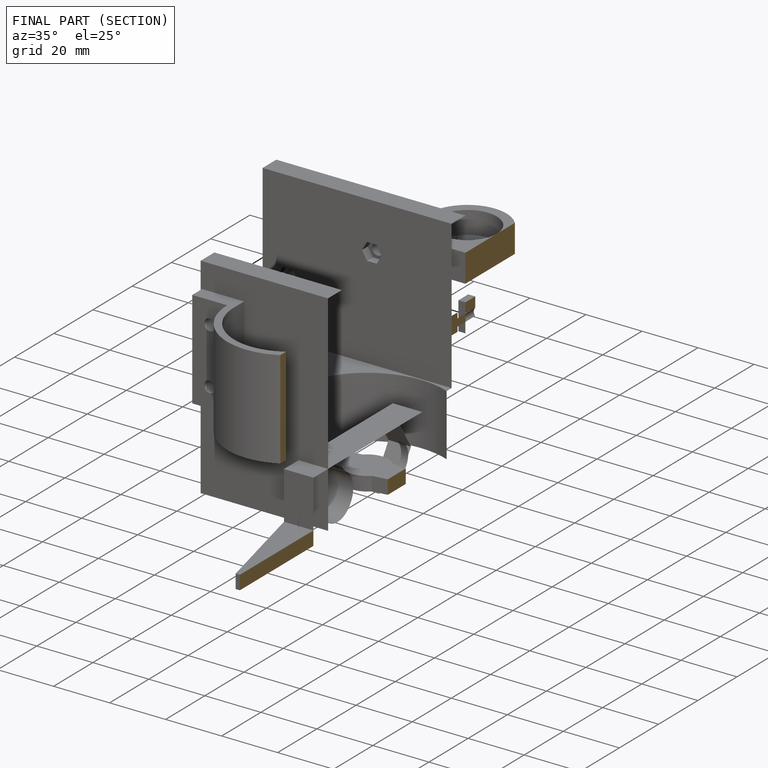
[diagram: finished part — half-section view (interior)]
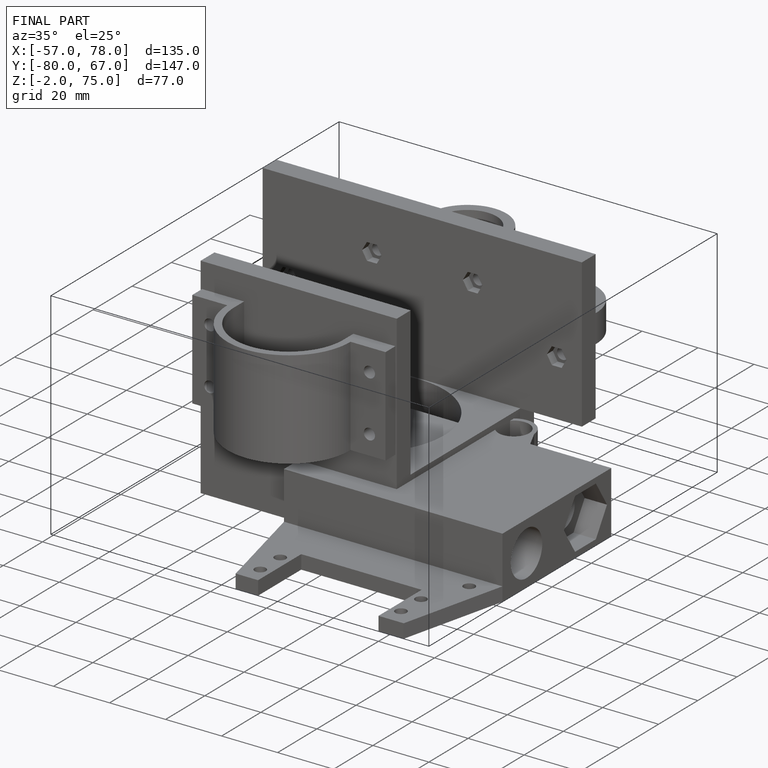
[diagram: finished part — iso view with bounding-box wireframe]
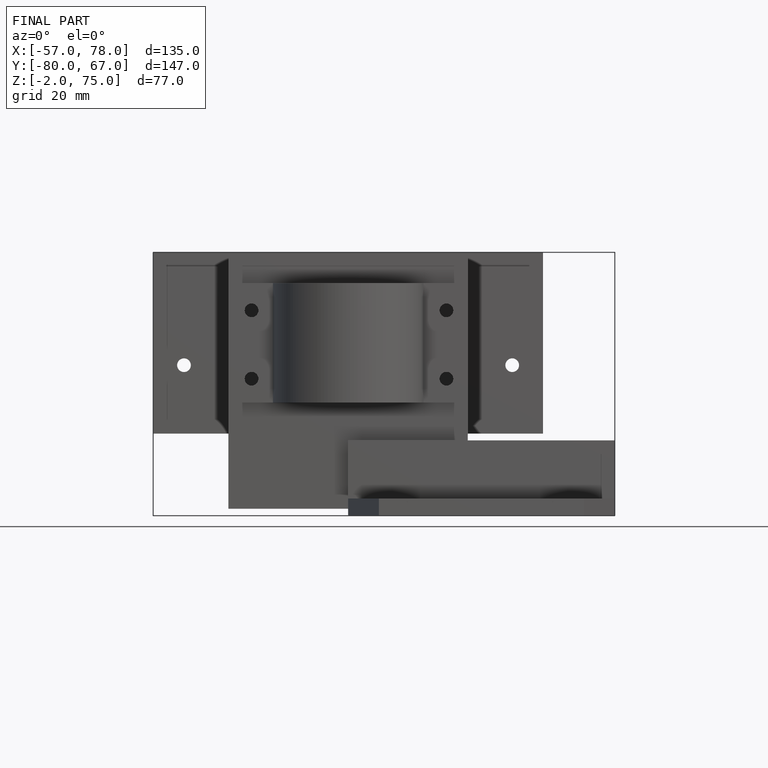
[diagram: finished part — front view with bounding-box wireframe]
